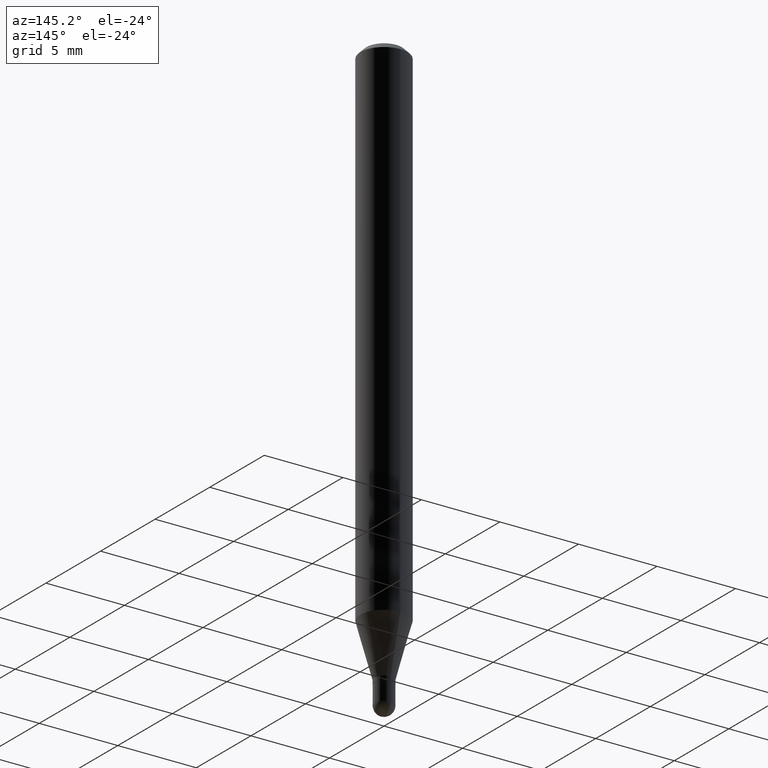
[diagram: clean part render]
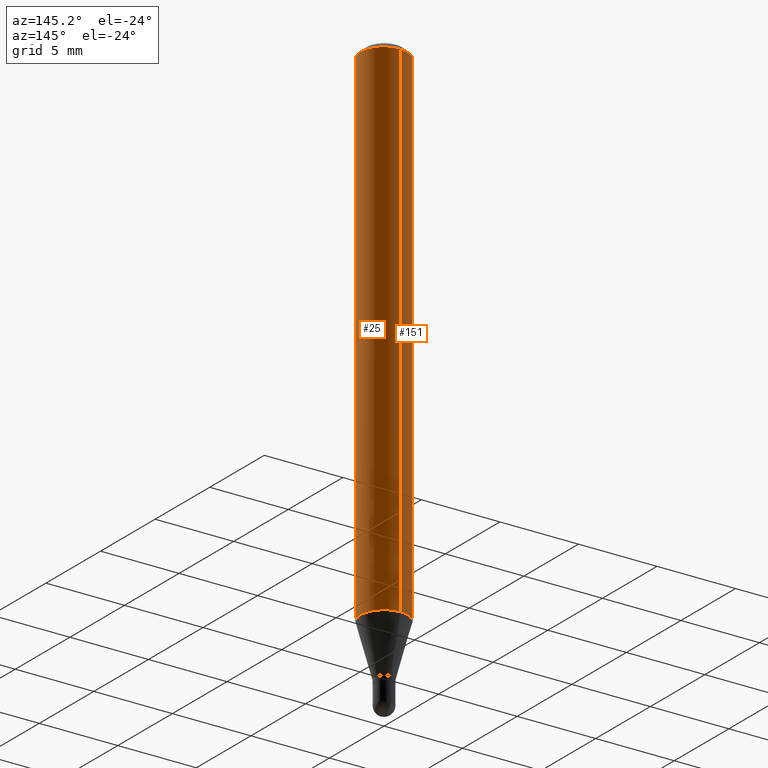
[diagram: same view with one multi-face feature highlighted, each face labeled with its STEP entity id]
A machine part, auxiliary view. The highlighted faces form ONE feature: a constant-radius fillet chain: 2 tangent blend faces with common blend radius 1.4999 mm. The faces share edges in the B-rep.
Their STEP definitions:
[1] entity #25 (Cylinder):
#14 = CARTESIAN_POINT ( 'NONE',  ( 4.195754854663702585E-16, 0.05904999999999548110, -1.282798798871683799 ) ) ;
#25 = ADVANCED_FACE ( 'NONE', ( #87 ), #410, .T. ) ;
#30 = DIRECTION ( 'NONE',  ( -2.445409518565941942E-29, 3.491566242088273714E-15, 1.000000000000000000 ) ) ;
#51 = AXIS2_PLACEMENT_3D ( 'NONE', #123, #439, #334 ) ;
#54 = CARTESIAN_POINT ( 'NONE',  ( -4.123439461173739834E-16, -0.05904999999999999832, 2.061769865953125508E-16 ) ) ;
#68 = VECTOR ( 'NONE', #30, 39.37007874015748143 ) ;
#81 = DIRECTION ( 'NONE',  ( -2.445409518565941942E-29, 3.491566242088273714E-15, 1.000000000000000000 ) ) ;
#87 = FACE_OUTER_BOUND ( 'NONE', #140, .T. ) ;
#92 = VERTEX_POINT ( 'NONE', #432 ) ;
#122 = CARTESIAN_POINT ( 'NONE',  ( 3.136968393165772495E-29, -4.478976981531755489E-15, -1.282798798871683577 ) ) ;
#123 = CARTESIAN_POINT ( 'NONE',  ( 0.000000000000000000, 0.000000000000000000, 0.000000000000000000 ) ) ;
#140 = EDGE_LOOP ( 'NONE', ( #329, #397, #319, #233 ) ) ;
#164 = EDGE_CURVE ( 'NONE', #228, #217, #231, .T. ) ;
#188 = CARTESIAN_POINT ( 'NONE',  ( -4.123439461173736383E-16, -0.05905000000000005383, -0.01499999999999981730 ) ) ;
#193 = DIRECTION ( 'NONE',  ( -2.445409518565941942E-29, 3.491566242088273714E-15, 1.000000000000000000 ) ) ;
#217 = VERTEX_POINT ( 'NONE', #287 ) ;
#228 = VERTEX_POINT ( 'NONE', #14 ) ;
#231 = LINE ( 'NONE', #386, #68 ) ;
#233 = ORIENTED_EDGE ( 'NONE', *, *, #259, .F. ) ;
#254 = DIRECTION ( 'NONE',  ( -6.982962677686265922E-15, -1.000000000000000000, 3.505890868245046092E-15 ) ) ;
#259 = EDGE_CURVE ( 'NONE', #92, #272, #406, .T. ) ;
#272 = VERTEX_POINT ( 'NONE', #188 ) ;
#282 = AXIS2_PLACEMENT_3D ( 'NONE', #122, #81, #324 ) ;
#287 = CARTESIAN_POINT ( 'NONE',  ( 4.195754854663707023E-16, 0.05904999999999994975, -0.01500000000000023016 ) ) ;
#295 = CARTESIAN_POINT ( 'NONE',  ( 3.668114277848918291E-31, -5.237349363132419125E-17, -0.01500000000000002373 ) ) ;
#309 = EDGE_CURVE ( 'NONE', #272, #217, #394, .T. ) ;
#319 = ORIENTED_EDGE ( 'NONE', *, *, #309, .F. ) ;
#324 = DIRECTION ( 'NONE',  ( -6.982962677686265922E-15, -1.000000000000000000, 4.626330217890369336E-15 ) ) ;
#329 = ORIENTED_EDGE ( 'NONE', *, *, #426, .T. ) ;
#333 = AXIS2_PLACEMENT_3D ( 'NONE', #295, #446, #254 ) ;
#334 = DIRECTION ( 'NONE',  ( -6.982962677686265922E-15, -1.000000000000000000, 3.491566242088273714E-15 ) ) ;
#359 = CIRCLE ( 'NONE', #282, 0.05904999999999999832 ) ;
#380 = VECTOR ( 'NONE', #193, 39.37007874015748143 ) ;
#386 = CARTESIAN_POINT ( 'NONE',  ( 4.195754854663390985E-16, 0.05904999999999999832, -2.061769865953125508E-16 ) ) ;
#394 = CIRCLE ( 'NONE', #333, 0.05904999999999999832 ) ;
#397 = ORIENTED_EDGE ( 'NONE', *, *, #164, .T. ) ;
#406 = LINE ( 'NONE', #54, #380 ) ;
#410 = CYLINDRICAL_SURFACE ( 'NONE', #51, 0.05904999999999999832 ) ;
#426 = EDGE_CURVE ( 'NONE', #92, #228, #359, .T. ) ;
#432 = CARTESIAN_POINT ( 'NONE',  ( -4.123439461173428234E-16, -0.05905000000000449473, -1.282798798871683355 ) ) ;
#439 = DIRECTION ( 'NONE',  ( -2.445409518565941942E-29, 3.491566242088273714E-15, 1.000000000000000000 ) ) ;
#446 = DIRECTION ( 'NONE',  ( -2.445409518565941942E-29, 3.491566242088273714E-15, 1.000000000000000000 ) ) ;
[2] entity #151 (Cylinder):
#14 = CARTESIAN_POINT ( 'NONE',  ( 4.195754854663702585E-16, 0.05904999999999548110, -1.282798798871683799 ) ) ;
#17 = CYLINDRICAL_SURFACE ( 'NONE', #20, 0.05904999999999999832 ) ;
#20 = AXIS2_PLACEMENT_3D ( 'NONE', #181, #107, #307 ) ;
#30 = DIRECTION ( 'NONE',  ( -2.445409518565941942E-29, 3.491566242088273714E-15, 1.000000000000000000 ) ) ;
#54 = CARTESIAN_POINT ( 'NONE',  ( -4.123439461173739834E-16, -0.05904999999999999832, 2.061769865953125508E-16 ) ) ;
#58 = CIRCLE ( 'NONE', #91, 0.05904999999999999832 ) ;
#67 = DIRECTION ( 'NONE',  ( -6.982962677686265922E-15, -1.000000000000000000, 3.505890868245046092E-15 ) ) ;
#68 = VECTOR ( 'NONE', #30, 39.37007874015748143 ) ;
#71 = DIRECTION ( 'NONE',  ( -2.445409518565941942E-29, 3.491566242088273714E-15, 1.000000000000000000 ) ) ;
#91 = AXIS2_PLACEMENT_3D ( 'NONE', #459, #421, #67 ) ;
#92 = VERTEX_POINT ( 'NONE', #432 ) ;
#98 = ORIENTED_EDGE ( 'NONE', *, *, #137, .T. ) ;
#107 = DIRECTION ( 'NONE',  ( -2.445409518565941942E-29, 3.491566242088273714E-15, 1.000000000000000000 ) ) ;
#137 = EDGE_CURVE ( 'NONE', #228, #92, #454, .T. ) ;
#142 = AXIS2_PLACEMENT_3D ( 'NONE', #316, #71, #240 ) ;
#151 = ADVANCED_FACE ( 'NONE', ( #450 ), #17, .T. ) ;
#154 = EDGE_CURVE ( 'NONE', #217, #272, #58, .T. ) ;
#164 = EDGE_CURVE ( 'NONE', #228, #217, #231, .T. ) ;
#181 = CARTESIAN_POINT ( 'NONE',  ( 0.000000000000000000, 0.000000000000000000, 0.000000000000000000 ) ) ;
#188 = CARTESIAN_POINT ( 'NONE',  ( -4.123439461173736383E-16, -0.05905000000000005383, -0.01499999999999981730 ) ) ;
#193 = DIRECTION ( 'NONE',  ( -2.445409518565941942E-29, 3.491566242088273714E-15, 1.000000000000000000 ) ) ;
#217 = VERTEX_POINT ( 'NONE', #287 ) ;
#228 = VERTEX_POINT ( 'NONE', #14 ) ;
#231 = LINE ( 'NONE', #386, #68 ) ;
#240 = DIRECTION ( 'NONE',  ( -6.982962677686265922E-15, -1.000000000000000000, 4.626330217890369336E-15 ) ) ;
#259 = EDGE_CURVE ( 'NONE', #92, #272, #406, .T. ) ;
#264 = EDGE_LOOP ( 'NONE', ( #288, #98, #290, #480 ) ) ;
#272 = VERTEX_POINT ( 'NONE', #188 ) ;
#287 = CARTESIAN_POINT ( 'NONE',  ( 4.195754854663707023E-16, 0.05904999999999994975, -0.01500000000000023016 ) ) ;
#288 = ORIENTED_EDGE ( 'NONE', *, *, #164, .F. ) ;
#290 = ORIENTED_EDGE ( 'NONE', *, *, #259, .T. ) ;
#307 = DIRECTION ( 'NONE',  ( -6.982962677686265922E-15, -1.000000000000000000, 3.491566242088273714E-15 ) ) ;
#316 = CARTESIAN_POINT ( 'NONE',  ( 3.136968393165772495E-29, -4.478976981531755489E-15, -1.282798798871683577 ) ) ;
#380 = VECTOR ( 'NONE', #193, 39.37007874015748143 ) ;
#386 = CARTESIAN_POINT ( 'NONE',  ( 4.195754854663390985E-16, 0.05904999999999999832, -2.061769865953125508E-16 ) ) ;
#406 = LINE ( 'NONE', #54, #380 ) ;
#421 = DIRECTION ( 'NONE',  ( -2.445409518565941942E-29, 3.491566242088273714E-15, 1.000000000000000000 ) ) ;
#432 = CARTESIAN_POINT ( 'NONE',  ( -4.123439461173428234E-16, -0.05905000000000449473, -1.282798798871683355 ) ) ;
#450 = FACE_OUTER_BOUND ( 'NONE', #264, .T. ) ;
#454 = CIRCLE ( 'NONE', #142, 0.05904999999999999832 ) ;
#459 = CARTESIAN_POINT ( 'NONE',  ( 3.668114277848918291E-31, -5.237349363132419125E-17, -0.01500000000000002373 ) ) ;
#480 = ORIENTED_EDGE ( 'NONE', *, *, #154, .F. ) ;